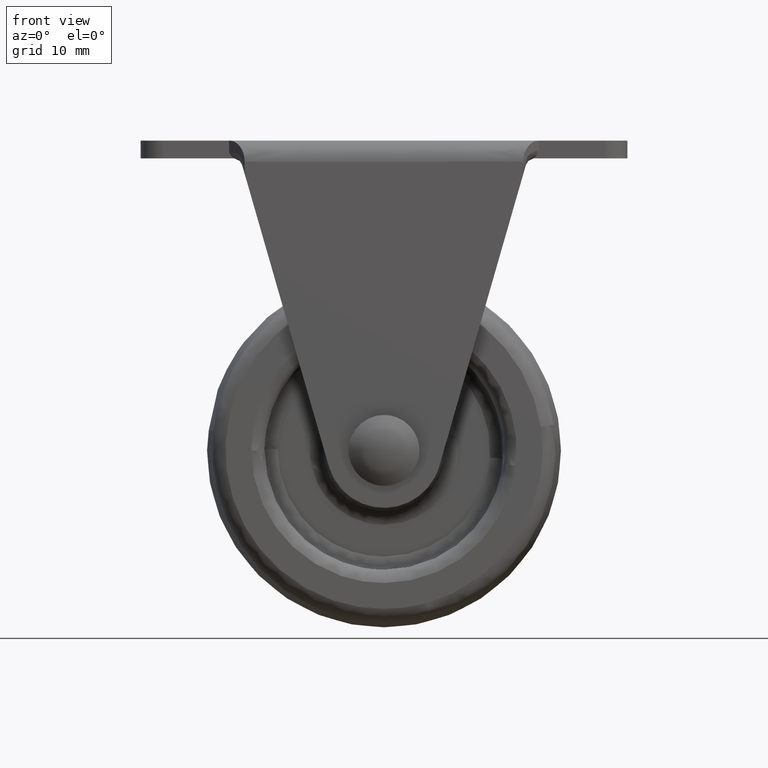
[diagram: clean part render]
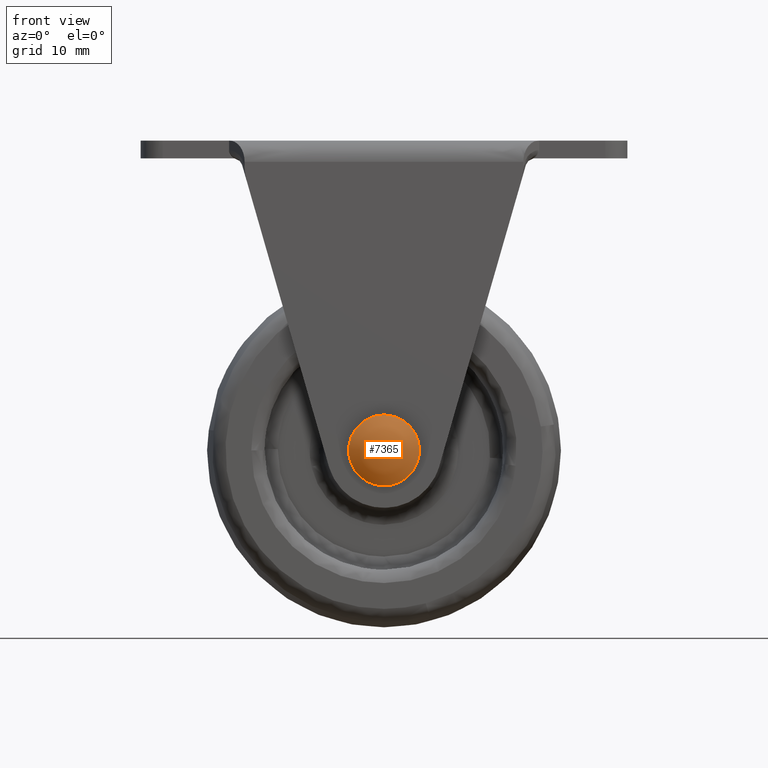
[diagram: same view with one face highlighted and labeled with its STEP entity id]
A machine part, front view. The second image highlights one B-rep face of the part: STEP entity #7365.
In plain terms, the highlighted face is a freeform B-spline surface patch.
Its self-contained STEP definition (entity closure, byte-faithful):
#6766=CARTESIAN_POINT('',(-3.992539193683136,-13.0,-34.755805841792949));
#6767=VERTEX_POINT('',#6766);
#6773=CARTESIAN_POINT('',(0.0,-13.0,-31.000000000000199));
#6774=VERTEX_POINT('',#6773);
#6775=CARTESIAN_POINT('',(0.0,-13.0,-31.000000000000199));
#6776=CARTESIAN_POINT('',(-3.762824267494885,-13.000000000000002,-31.000000000000203));
#6777=CARTESIAN_POINT('',(-3.992539193683137,-12.999999999999998,-34.755805841792949));
#6785=(BOUNDED_CURVE()B_SPLINE_CURVE(2,(#6775,#6776,#6777),.UNSPECIFIED.,.F.,.U.)B_SPLINE_CURVE_WITH_KNOTS((3,3),(0.500000000000000,0.739332962236123),.UNSPECIFIED.)CURVE()GEOMETRIC_REPRESENTATION_ITEM()RATIONAL_B_SPLINE_CURVE((1.0,0.719603993290014,0.976072041660674))REPRESENTATION_ITEM(''));
#6786=EDGE_CURVE('',#6774,#6767,#6785,.T.);
#6788=CARTESIAN_POINT('',(3.972038105451027,-13.0,-35.472136938655993));
#6789=VERTEX_POINT('',#6788);
#6790=CARTESIAN_POINT('',(3.972038105451027,-13.000000000000002,-35.472136938655979));
#6791=CARTESIAN_POINT('',(3.999999999999806,-13.000000000000004,-35.236896478636915));
#6792=CARTESIAN_POINT('',(3.999999999999805,-13.0,-35.0));
#6793=CARTESIAN_POINT('',(3.999999999999806,-13.000000000000002,-31.000000000000203));
#6794=CARTESIAN_POINT('',(0.0,-13.0,-31.000000000000199));
#6802=(BOUNDED_CURVE()B_SPLINE_CURVE(2,(#6790,#6791,#6792,#6793,#6794),.UNSPECIFIED.,.F.,.U.)B_SPLINE_CURVE_WITH_KNOTS((3,2,3),(0.229562473513178,0.250000000000000,0.500000000000000),.UNSPECIFIED.)CURVE()GEOMETRIC_REPRESENTATION_ITEM()RATIONAL_B_SPLINE_CURVE((0.956026754183052,0.976055948330758,1.0,0.707106781186548,1.0))REPRESENTATION_ITEM(''));
#6803=EDGE_CURVE('',#6789,#6774,#6802,.T.);
#6847=CARTESIAN_POINT('',(0.0,-13.0,-38.999999999999808));
#6848=VERTEX_POINT('',#6847);
#6849=CARTESIAN_POINT('',(0.0,-13.0,-38.999999999999808));
#6850=CARTESIAN_POINT('',(3.552698103753090,-13.0,-38.999999999999808));
#6851=CARTESIAN_POINT('',(3.972038105451027,-13.000000000000004,-35.472136938655986));
#6859=(BOUNDED_CURVE()B_SPLINE_CURVE(2,(#6849,#6850,#6851),.UNSPECIFIED.,.F.,.U.)B_SPLINE_CURVE_WITH_KNOTS((3,3),(0.0,0.229562473513178),.UNSPECIFIED.)CURVE()GEOMETRIC_REPRESENTATION_ITEM()RATIONAL_B_SPLINE_CURVE((1.0,0.731050832855789,0.956026754183052))REPRESENTATION_ITEM(''));
#6860=EDGE_CURVE('',#6848,#6789,#6859,.T.);
#6862=CARTESIAN_POINT('',(-3.992539193683137,-13.0,-34.755805841792949));
#6863=CARTESIAN_POINT('',(-3.999999999999806,-13.0,-34.877788946737823));
#6864=CARTESIAN_POINT('',(-3.999999999999805,-13.0,-35.0));
#6865=CARTESIAN_POINT('',(-3.999999999999806,-13.000000000000002,-38.999999999999808));
#6866=CARTESIAN_POINT('',(0.0,-13.0,-38.999999999999808));
#6874=(BOUNDED_CURVE()B_SPLINE_CURVE(2,(#6862,#6863,#6864,#6865,#6866),.UNSPECIFIED.,.F.,.U.)B_SPLINE_CURVE_WITH_KNOTS((3,2,3),(0.739332962236123,0.750000000000000,1.0),.UNSPECIFIED.)CURVE()GEOMETRIC_REPRESENTATION_ITEM()RATIONAL_B_SPLINE_CURVE((0.976072041660673,0.987502787896533,1.0,0.707106781186548,1.0))REPRESENTATION_ITEM(''));
#6875=EDGE_CURVE('',#6767,#6848,#6874,.T.);
#7335=CARTESIAN_POINT('',(-3.744233109791712,-11.411288336592095,-38.744315940042455));
#7336=CARTESIAN_POINT('',(-2.144292834421159,-12.731080007988151,-39.288680541307727));
#7337=CARTESIAN_POINT('',(2.144304854575234,-12.731080007988151,-39.288680541307727));
#7338=CARTESIAN_POINT('',(3.744248770358070,-11.411275418133195,-38.744310611662307));
#7339=CARTESIAN_POINT('',(-4.288613255251208,-12.731146891687130,-37.144354064163437));
#7340=CARTESIAN_POINT('',(-2.509091364854703,-14.500000000000000,-37.509146871192243));
#7341=CARTESIAN_POINT('',(2.509105429941481,-14.500000000000000,-37.509146871192243));
#7342=CARTESIAN_POINT('',(4.288630305411873,-12.731129943680456,-37.144350568954643));
#7343=CARTESIAN_POINT('',(-4.288613255251208,-12.731146891687130,-32.855645901394631));
#7344=CARTESIAN_POINT('',(-2.509091364854703,-14.500000000000000,-32.490853088506640));
#7345=CARTESIAN_POINT('',(2.509105429941481,-14.500000000000000,-32.490853088506640));
#7346=CARTESIAN_POINT('',(4.288630305411873,-12.731129943680456,-32.855649396603461));
#7347=CARTESIAN_POINT('',(-3.744233094524168,-11.411288299575682,-31.255684015085457));
#7348=CARTESIAN_POINT('',(-2.144292824406376,-12.731079959426138,-30.711319409838886));
#7349=CARTESIAN_POINT('',(2.144304844560394,-12.731079959426138,-30.711319409838886));
#7350=CARTESIAN_POINT('',(3.744248755090485,-11.411275381116893,-31.255689343465647));
#7358=(BOUNDED_SURFACE()B_SPLINE_SURFACE(2,2,((#7335,#7339,#7343,#7347),(#7336,#7340,#7344,#7348),(#7337,#7341,#7345,#7349),(#7338,#7342,#7346,#7350)),.UNSPECIFIED.,.F.,.F.,.U.)B_SPLINE_SURFACE_WITH_KNOTS((3,1,3),(3,1,3),(0.0,4.624794114990057,9.249614154954967),(0.0,4.624896425088006,9.249792924459609),.UNSPECIFIED.)GEOMETRIC_REPRESENTATION_ITEM()RATIONAL_B_SPLINE_SURFACE(((1.340243137262510,1.170117805228736,1.170117805228736,1.340243142727507),(1.170125332033775,1.0,1.0,1.170125337498771),(1.170125332033775,1.0,1.0,1.170125337498771),(1.340245044509438,1.170119712475664,1.170119712475664,1.340245049974434)))REPRESENTATION_ITEM('')SURFACE());
#7359=ORIENTED_EDGE('',*,*,#6860,.T.);
#7360=ORIENTED_EDGE('',*,*,#6803,.T.);
#7361=ORIENTED_EDGE('',*,*,#6786,.T.);
#7362=ORIENTED_EDGE('',*,*,#6875,.T.);
#7363=EDGE_LOOP('',(#7359,#7360,#7361,#7362));
#7364=FACE_OUTER_BOUND('',#7363,.T.);
#7365=ADVANCED_FACE('',(#7364),#7358,.T.);